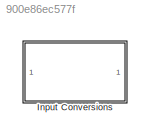
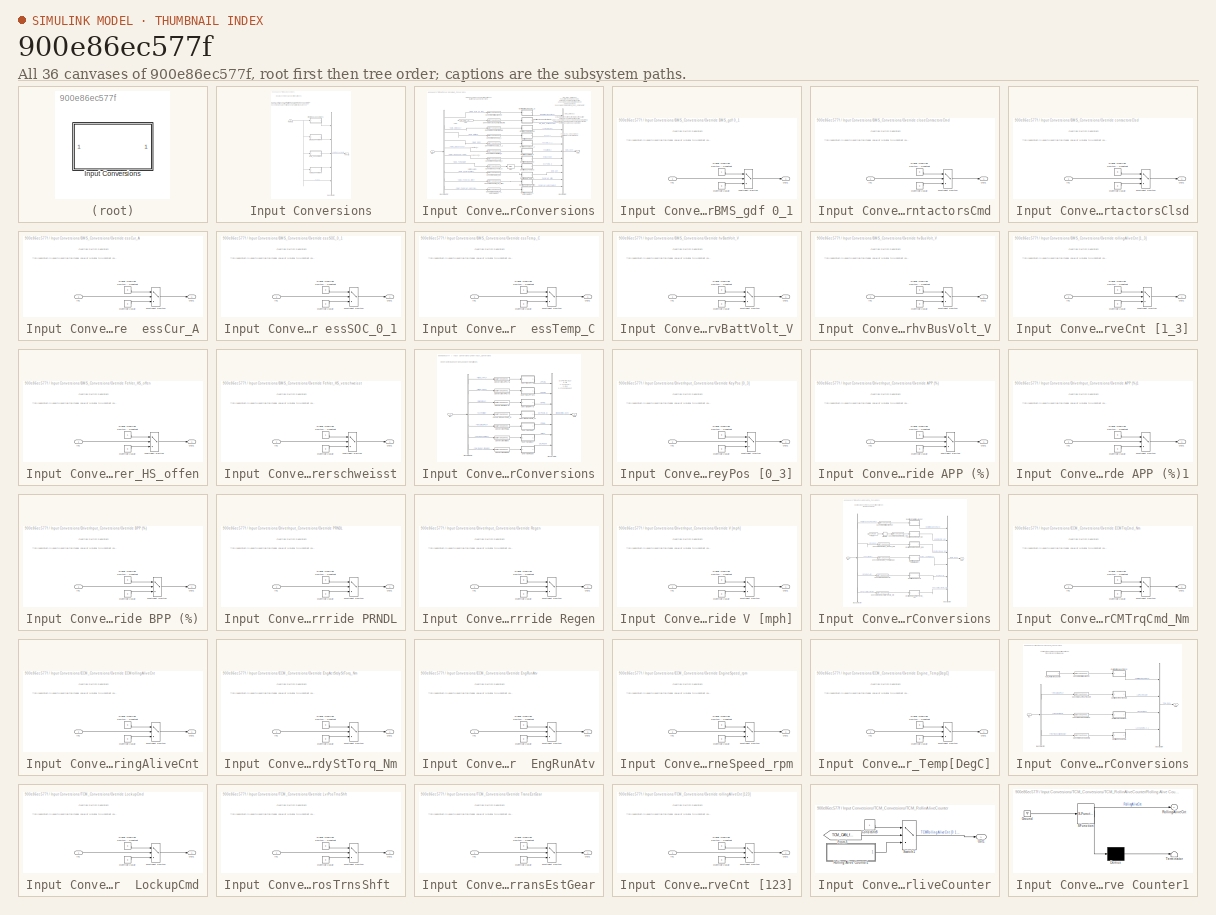
[diagram: thumbnail index - all 36 canvases of the model, root first then tree order]
MODEL slx_900e86ec577f
KIND library
CONFIG AbsTol = auto
CONFIG EnableMultiTasking = off
CONFIG FixedStep = auto
CONFIG MaxStep = auto
CONFIG MinStep = auto
CONFIG RelTol = 1e-3
CONFIG SampleTimeConstraint = Unconstrained
CONFIG Solver = VariableStepAuto
CONFIG SolverName = VariableStepAuto
CONFIG StartTime = 0.0
CONFIG StopTime = 10.0
BLOCK [SubSystem] Input Conversions
  Ports = [1, 1]
  RequestExecContextInheritance = off
  Variant = off
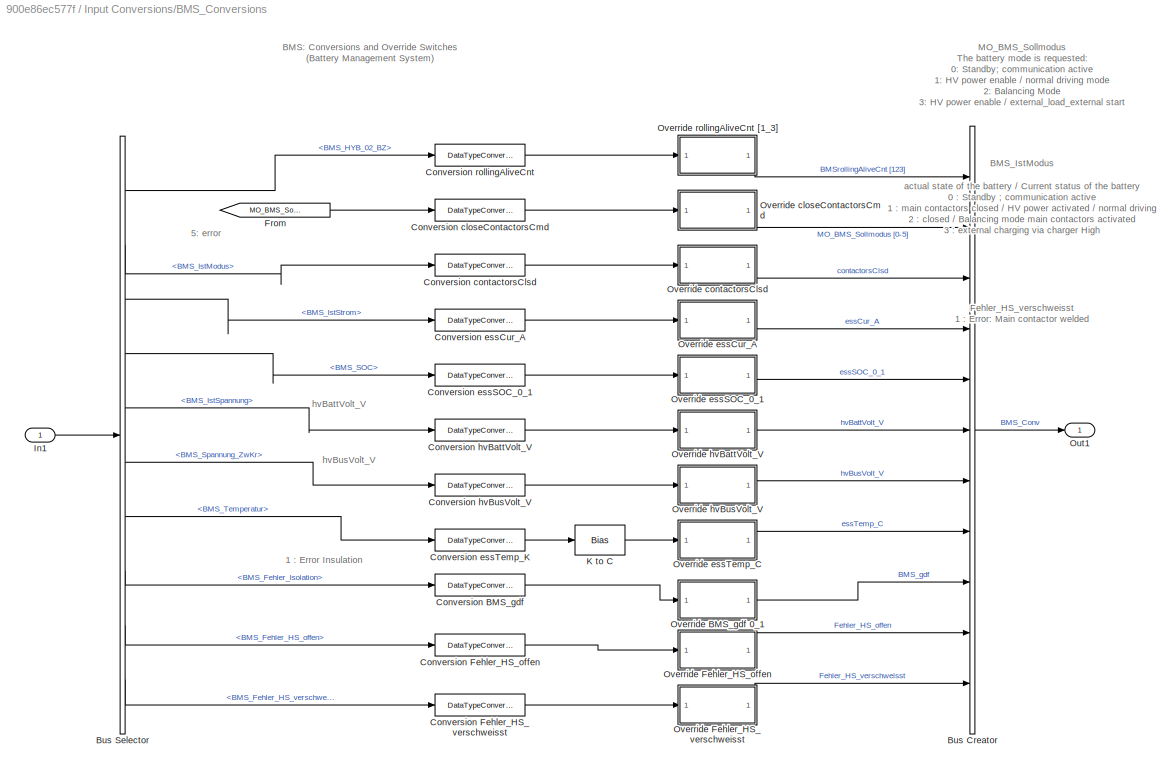
BLOCK [SubSystem] Input Conversions/BMS_Conversions
  Ports = [1, 1]
  RequestExecContextInheritance = off
  Variant = off
BLOCK [BusCreator] Input Conversions/BMS_Conversions/Bus Creator
  DisplayOption = bar
  InheritFromInputs = on
  Inputs = 11
  Ports = [11, 1]
BLOCK [BusSelector] Input Conversions/BMS_Conversions/Bus Selector
  OutputAsBus = off
  OutputSignals = from_CAN.fromHV_CAN.from_BMSHybrid.BMS_HYB_02.BMS_HYB_02_BZ,from_CAN.fromHV_CAN.from_BMSHybrid.BMS_HYB_02.BMS_IstModus,from_CAN.fromHV_CAN.from_BMSHybrid.BMS_HYB_02.BMS_IstStrom,from_CAN.fromHV_CAN.from_BMSHybrid.BMS_SOC,from_CAN.fromHV_CAN.from_BMSHybrid.BMS_HYB_02.BMS_IstSpannung,from_CAN.fromHV_CAN.from_BMSHybrid.BMS_Spannung_ZwKr,from_CAN.fromHV_CAN.from_BMSHybrid.BMS_Temperatur,from_CAN.fromH...<+169ch>
  Ports = [1, 10]
BLOCK [DataTypeConversion] Input Conversions/BMS_Conversions/Conversion  BMS_gdf
  OutDataTypeStr = boolean
  RndMeth = Floor
  SaturateOnIntegerOverflow = off
BLOCK [DataTypeConversion] Input Conversions/BMS_Conversions/Conversion  Fehler_HS_offen
  OutDataTypeStr = boolean
  RndMeth = Floor
  SaturateOnIntegerOverflow = off
BLOCK [DataTypeConversion] Input Conversions/BMS_Conversions/Conversion  Fehler_HS_verschweisst
  OutDataTypeStr = boolean
  RndMeth = Floor
  SaturateOnIntegerOverflow = off
BLOCK [DataTypeConversion] Input Conversions/BMS_Conversions/Conversion  closeContactorsCmd
  OutDataTypeStr = boolean
  RndMeth = Floor
  SaturateOnIntegerOverflow = off
BLOCK [DataTypeConversion] Input Conversions/BMS_Conversions/Conversion  contactorsClsd
  OutDataTypeStr = boolean
  RndMeth = Floor
  SaturateOnIntegerOverflow = off
BLOCK [DataTypeConversion] Input Conversions/BMS_Conversions/Conversion  essTemp_K
  OutDataTypeStr = double
  RndMeth = Floor
  SaturateOnIntegerOverflow = off
BLOCK [DataTypeConversion] Input Conversions/BMS_Conversions/Conversion  hvBattVolt_V
  OutDataTypeStr = double
  RndMeth = Floor
  SaturateOnIntegerOverflow = off
BLOCK [DataTypeConversion] Input Conversions/BMS_Conversions/Conversion  hvBusVolt_V
  OutDataTypeStr = double
  RndMeth = Floor
  SaturateOnIntegerOverflow = off
BLOCK [DataTypeConversion] Input Conversions/BMS_Conversions/Conversion  rollingAliveCnt
  OutDataTypeStr = int8
  RndMeth = Floor
  SaturateOnIntegerOverflow = off
BLOCK [DataTypeConversion] Input Conversions/BMS_Conversions/Conversion essCur_A
  OutDataTypeStr = double
  RndMeth = Floor
  SaturateOnIntegerOverflow = off
BLOCK [DataTypeConversion] Input Conversions/BMS_Conversions/Conversion essSOC_0_1
  OutDataTypeStr = double
  RndMeth = Floor
  SaturateOnIntegerOverflow = off
BLOCK [From] Input Conversions/BMS_Conversions/From
  GotoTag = MO_BMS_Sollmodus
BLOCK [Inport] Input Conversions/BMS_Conversions/In1
  IconDisplay = Port number
BLOCK [Bias] Input Conversions/BMS_Conversions/K to C
  Bias = -273.15
  SaturateOnIntegerOverflow = off
BLOCK [Outport] Input Conversions/BMS_Conversions/Out1
  IconDisplay = Port number
BLOCK [SubSystem] Input Conversions/BMS_Conversions/Override  BMS_gdf 0_1
  Ports = [1, 1]
  RequestExecContextInheritance = off
  Variant = off
BLOCK [Inport] Input Conversions/BMS_Conversions/Override  BMS_gdf 0_1/In1
  IconDisplay = Port number
BLOCK [MultiPortSwitch] Input Conversions/BMS_Conversions/Override  BMS_gdf 0_1/Multiport Switch
  DataPortOrder = Zero-based contiguous
  InputSameDT = off
  Inputs = 2
  Ports = [3, 1]
  SaturateOnIntegerOverflow = off
  zeroidx = on
BLOCK [Outport] Input Conversions/BMS_Conversions/Override  BMS_gdf 0_1/Out1
  IconDisplay = Port number
BLOCK [Constant] Input Conversions/BMS_Conversions/Override  BMS_gdf 0_1/Override Value
  OutDataTypeStr = double
  Value = 0
BLOCK [Constant] Input Conversions/BMS_Conversions/Override  BMS_gdf 0_1/Signal Override Switch 0 = Use Model 1 = Use Constant
BLOCK [SubSystem] Input Conversions/BMS_Conversions/Override  closeContactorsCmd
  Ports = [1, 1]
  RequestExecContextInheritance = off
  Variant = off
BLOCK [Inport] Input Conversions/BMS_Conversions/Override  closeContactorsCmd/In1
  IconDisplay = Port number
BLOCK [MultiPortSwitch] Input Conversions/BMS_Conversions/Override  closeContactorsCmd/Multiport Switch
  DataPortOrder = Zero-based contiguous
  InputSameDT = off
  Inputs = 2
  Ports = [3, 1]
  SaturateOnIntegerOverflow = off
  zeroidx = on
BLOCK [Outport] Input Conversions/BMS_Conversions/Override  closeContactorsCmd/Out1
  IconDisplay = Port number
BLOCK [Constant] Input Conversions/BMS_Conversions/Override  closeContactorsCmd/Override Value
  OutDataTypeStr = double
  Value = 0
BLOCK [Constant] Input Conversions/BMS_Conversions/Override  closeContactorsCmd/Signal Override Switch 0 = Use Model 1 = Use Constant
  Value = 0
BLOCK [SubSystem] Input Conversions/BMS_Conversions/Override  contactorsClsd
  Ports = [1, 1]
  RequestExecContextInheritance = off
  Variant = off
BLOCK [Inport] Input Conversions/BMS_Conversions/Override  contactorsClsd/In1
  IconDisplay = Port number
BLOCK [MultiPortSwitch] Input Conversions/BMS_Conversions/Override  contactorsClsd/Multiport Switch
  DataPortOrder = Zero-based contiguous
  InputSameDT = off
  Inputs = 2
  Ports = [3, 1]
  SaturateOnIntegerOverflow = off
  zeroidx = on
BLOCK [Outport] Input Conversions/BMS_Conversions/Override  contactorsClsd/Out1
  IconDisplay = Port number
BLOCK [Constant] Input Conversions/BMS_Conversions/Override  contactorsClsd/Override Value
  OutDataTypeStr = double
  Value = 0
BLOCK [Constant] Input Conversions/BMS_Conversions/Override  contactorsClsd/Signal Override Switch 0 = Use Model 1 = Use Constant
  Value = 0
BLOCK [SubSystem] Input Conversions/BMS_Conversions/Override  essCur_A
  Ports = [1, 1]
  RequestExecContextInheritance = off
  Variant = off
BLOCK [Inport] Input Conversions/BMS_Conversions/Override  essCur_A/In1
  IconDisplay = Port number
BLOCK [MultiPortSwitch] Input Conversions/BMS_Conversions/Override  essCur_A/Multiport Switch
  DataPortOrder = Zero-based contiguous
  InputSameDT = off
  Inputs = 2
  Ports = [3, 1]
  SaturateOnIntegerOverflow = off
  zeroidx = on
BLOCK [Outport] Input Conversions/BMS_Conversions/Override  essCur_A/Out1
  IconDisplay = Port number
BLOCK [Constant] Input Conversions/BMS_Conversions/Override  essCur_A/Override Value
  OutDataTypeStr = double
  Value = 0
BLOCK [Constant] Input Conversions/BMS_Conversions/Override  essCur_A/Signal Override Switch 0 = Use Model 1 = Use Constant
  Value = 0
BLOCK [SubSystem] Input Conversions/BMS_Conversions/Override  essSOC_0_1
  Ports = [1, 1]
  RequestExecContextInheritance = off
  Variant = off
BLOCK [Inport] Input Conversions/BMS_Conversions/Override  essSOC_0_1/In1
  IconDisplay = Port number
BLOCK [MultiPortSwitch] Input Conversions/BMS_Conversions/Override  essSOC_0_1/Multiport Switch
  DataPortOrder = Zero-based contiguous
  InputSameDT = off
  Inputs = 2
  Ports = [3, 1]
  SaturateOnIntegerOverflow = off
  zeroidx = on
BLOCK [Outport] Input Conversions/BMS_Conversions/Override  essSOC_0_1/Out1
  IconDisplay = Port number
BLOCK [Constant] Input Conversions/BMS_Conversions/Override  essSOC_0_1/Override Value
  OutDataTypeStr = double
  Value = 0
BLOCK [Constant] Input Conversions/BMS_Conversions/Override  essSOC_0_1/Signal Override Switch 0 = Use Model 1 = Use Constant
  Value = 0
BLOCK [SubSystem] Input Conversions/BMS_Conversions/Override  essTemp_C
  Ports = [1, 1]
  RequestExecContextInheritance = off
  Variant = off
BLOCK [Inport] Input Conversions/BMS_Conversions/Override  essTemp_C/In1
  IconDisplay = Port number
BLOCK [MultiPortSwitch] Input Conversions/BMS_Conversions/Override  essTemp_C/Multiport Switch
  DataPortOrder = Zero-based contiguous
  InputSameDT = off
  Inputs = 2
  Ports = [3, 1]
  SaturateOnIntegerOverflow = off
  zeroidx = on
BLOCK [Outport] Input Conversions/BMS_Conversions/Override  essTemp_C/Out1
  IconDisplay = Port number
BLOCK [Constant] Input Conversions/BMS_Conversions/Override  essTemp_C/Override Value
  OutDataTypeStr = double
  Value = 0
BLOCK [Constant] Input Conversions/BMS_Conversions/Override  essTemp_C/Signal Override Switch 0 = Use Model 1 = Use Constant
BLOCK [SubSystem] Input Conversions/BMS_Conversions/Override  hvBattVolt_V
  Ports = [1, 1]
  RequestExecContextInheritance = off
  Variant = off
BLOCK [Inport] Input Conversions/BMS_Conversions/Override  hvBattVolt_V/In1
  IconDisplay = Port number
BLOCK [MultiPortSwitch] Input Conversions/BMS_Conversions/Override  hvBattVolt_V/Multiport Switch
  DataPortOrder = Zero-based contiguous
  InputSameDT = off
  Inputs = 2
  Ports = [3, 1]
  SaturateOnIntegerOverflow = off
  zeroidx = on
BLOCK [Outport] Input Conversions/BMS_Conversions/Override  hvBattVolt_V/Out1
  IconDisplay = Port number
BLOCK [Constant] Input Conversions/BMS_Conversions/Override  hvBattVolt_V/Override Value
  OutDataTypeStr = double
  Value = 0
BLOCK [Constant] Input Conversions/BMS_Conversions/Override  hvBattVolt_V/Signal Override Switch 0 = Use Model 1 = Use Constant
  Value = 0
BLOCK [SubSystem] Input Conversions/BMS_Conversions/Override  hvBusVolt_V
  Ports = [1, 1]
  RequestExecContextInheritance = off
  Variant = off
BLOCK [Inport] Input Conversions/BMS_Conversions/Override  hvBusVolt_V/In1
  IconDisplay = Port number
BLOCK [MultiPortSwitch] Input Conversions/BMS_Conversions/Override  hvBusVolt_V/Multiport Switch
  DataPortOrder = Zero-based contiguous
  InputSameDT = off
  Inputs = 2
  Ports = [3, 1]
  SaturateOnIntegerOverflow = off
  zeroidx = on
BLOCK [Outport] Input Conversions/BMS_Conversions/Override  hvBusVolt_V/Out1
  IconDisplay = Port number
BLOCK [Constant] Input Conversions/BMS_Conversions/Override  hvBusVolt_V/Override Value
  OutDataTypeStr = double
  Value = 0
BLOCK [Constant] Input Conversions/BMS_Conversions/Override  hvBusVolt_V/Signal Override Switch 0 = Use Model 1 = Use Constant
  Value = 0
BLOCK [SubSystem] Input Conversions/BMS_Conversions/Override  rollingAliveCnt [1_3]
  Ports = [1, 1]
  RequestExecContextInheritance = off
  Variant = off
BLOCK [Inport] Input Conversions/BMS_Conversions/Override  rollingAliveCnt [1_3]/In1
  IconDisplay = Port number
BLOCK [MultiPortSwitch] Input Conversions/BMS_Conversions/Override  rollingAliveCnt [1_3]/Multiport Switch
  DataPortOrder = Zero-based contiguous
  InputSameDT = off
  Inputs = 2
  Ports = [3, 1]
  SaturateOnIntegerOverflow = off
  zeroidx = on
BLOCK [Outport] Input Conversions/BMS_Conversions/Override  rollingAliveCnt [1_3]/Out1
  IconDisplay = Port number
BLOCK [Constant] Input Conversions/BMS_Conversions/Override  rollingAliveCnt [1_3]/Override Value
  OutDataTypeStr = double
  Value = 0
BLOCK [Constant] Input Conversions/BMS_Conversions/Override  rollingAliveCnt [1_3]/Signal Override Switch 0 = Use Model 1 = Use Constant
  Value = 0
BLOCK [SubSystem] Input Conversions/BMS_Conversions/Override Fehler_HS_offen
  Ports = [1, 1]
  RequestExecContextInheritance = off
  Variant = off
BLOCK [Inport] Input Conversions/BMS_Conversions/Override Fehler_HS_offen/In1
  IconDisplay = Port number
BLOCK [MultiPortSwitch] Input Conversions/BMS_Conversions/Override Fehler_HS_offen/Multiport Switch
  DataPortOrder = Zero-based contiguous
  InputSameDT = off
  Inputs = 2
  Ports = [3, 1]
  SaturateOnIntegerOverflow = off
  zeroidx = on
BLOCK [Outport] Input Conversions/BMS_Conversions/Override Fehler_HS_offen/Out1
  IconDisplay = Port number
BLOCK [Constant] Input Conversions/BMS_Conversions/Override Fehler_HS_offen/Override Value
  OutDataTypeStr = double
  Value = 0
BLOCK [Constant] Input Conversions/BMS_Conversions/Override Fehler_HS_offen/Signal Override Switch 0 = Use Model 1 = Use Constant
BLOCK [SubSystem] Input Conversions/BMS_Conversions/Override Fehler_HS_verschweisst
  Ports = [1, 1]
  RequestExecContextInheritance = off
  Variant = off
BLOCK [Inport] Input Conversions/BMS_Conversions/Override Fehler_HS_verschweisst/In1
  IconDisplay = Port number
BLOCK [MultiPortSwitch] Input Conversions/BMS_Conversions/Override Fehler_HS_verschweisst/Multiport Switch
  DataPortOrder = Zero-based contiguous
  InputSameDT = off
  Inputs = 2
  Ports = [3, 1]
  SaturateOnIntegerOverflow = off
  zeroidx = on
BLOCK [Outport] Input Conversions/BMS_Conversions/Override Fehler_HS_verschweisst/Out1
  IconDisplay = Port number
BLOCK [Constant] Input Conversions/BMS_Conversions/Override Fehler_HS_verschweisst/Override Value
  OutDataTypeStr = double
  Value = 0
BLOCK [Constant] Input Conversions/BMS_Conversions/Override Fehler_HS_verschweisst/Signal Override Switch 0 = Use Model 1 = Use Constant
BLOCK [BusCreator] Input Conversions/Bus Creator
  DisplayOption = bar
  InheritFromInputs = on
  Inputs = 5
  Ports = [5, 1]
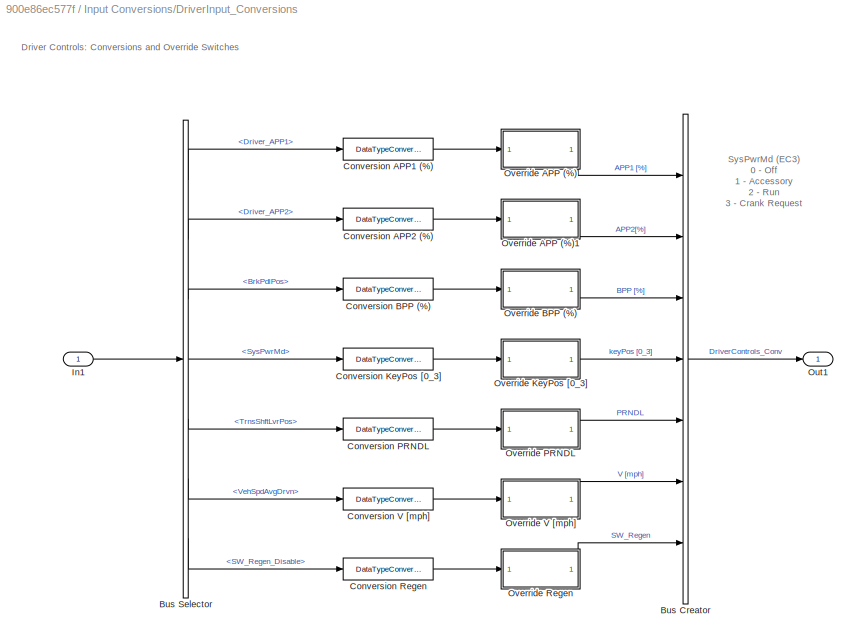
BLOCK [SubSystem] Input Conversions/DriverInput_Conversions
  Ports = [1, 1]
  RequestExecContextInheritance = off
  Variant = off
BLOCK [BusCreator] Input Conversions/DriverInput_Conversions/Bus Creator
  DisplayOption = bar
  InheritFromInputs = on
  Inputs = 7
  Ports = [7, 1]
BLOCK [BusSelector] Input Conversions/DriverInput_Conversions/Bus Selector
  OutputAsBus = off
  OutputSignals = from_Analog.Driver_APP1,from_Analog.Driver_APP2,from_CAN.fromVEH_CAN.from_BCM.BrkPdlPos,from_CAN.fromVEH_CAN.from_BCM.SysPwrMd,from_CAN.fromVEH_CAN.from_TCM.TrnsShftLvrPos,from_CAN.fromEBCAN.from_ECM.VehSpdAvgDrvn,from_Digital.SW_Regen_Disable
  Ports = [1, 7]
BLOCK [DataTypeConversion] Input Conversions/DriverInput_Conversions/Conversion  APP1 (%)
  OutDataTypeStr = double
  RndMeth = Floor
  SaturateOnIntegerOverflow = off
BLOCK [DataTypeConversion] Input Conversions/DriverInput_Conversions/Conversion  APP2 (%)
  OutDataTypeStr = double
  RndMeth = Floor
  SaturateOnIntegerOverflow = off
BLOCK [DataTypeConversion] Input Conversions/DriverInput_Conversions/Conversion  BPP (%)
  OutDataTypeStr = double
  RndMeth = Floor
  SaturateOnIntegerOverflow = off
BLOCK [DataTypeConversion] Input Conversions/DriverInput_Conversions/Conversion  KeyPos [0_3]
  OutDataTypeStr = int8
  RndMeth = Floor
  SaturateOnIntegerOverflow = off
BLOCK [DataTypeConversion] Input Conversions/DriverInput_Conversions/Conversion  V [mph]
  OutDataTypeStr = double
  RndMeth = Floor
  SaturateOnIntegerOverflow = off
BLOCK [DataTypeConversion] Input Conversions/DriverInput_Conversions/Conversion PRNDL
  OutDataTypeStr = uint8
  RndMeth = Floor
  SaturateOnIntegerOverflow = off
BLOCK [DataTypeConversion] Input Conversions/DriverInput_Conversions/Conversion Regen
  OutDataTypeStr = uint8
  RndMeth = Floor
  SaturateOnIntegerOverflow = off
BLOCK [Inport] Input Conversions/DriverInput_Conversions/In1
  IconDisplay = Port number
BLOCK [Outport] Input Conversions/DriverInput_Conversions/Out1
  IconDisplay = Port number
BLOCK [SubSystem] Input Conversions/DriverInput_Conversions/Override  KeyPos [0_3]
  Ports = [1, 1]
  RequestExecContextInheritance = off
  Variant = off
BLOCK [Inport] Input Conversions/DriverInput_Conversions/Override  KeyPos [0_3]/In1
  IconDisplay = Port number
BLOCK [MultiPortSwitch] Input Conversions/DriverInput_Conversions/Override  KeyPos [0_3]/Multiport Switch
  DataPortOrder = Zero-based contiguous
  InputSameDT = off
  Inputs = 2
  Ports = [3, 1]
  SaturateOnIntegerOverflow = off
  zeroidx = on
BLOCK [Outport] Input Conversions/DriverInput_Conversions/Override  KeyPos [0_3]/Out1
  IconDisplay = Port number
BLOCK [Constant] Input Conversions/DriverInput_Conversions/Override  KeyPos [0_3]/Override Value
  OutDataTypeStr = double
  Value = 0
BLOCK [Constant] Input Conversions/DriverInput_Conversions/Override  KeyPos [0_3]/Signal Override Switch 0 = Use Model 1 = Use Constant
  Value = 0
BLOCK [SubSystem] Input Conversions/DriverInput_Conversions/Override APP (%)
  Ports = [1, 1]
  RequestExecContextInheritance = off
  Variant = off
BLOCK [Inport] Input Conversions/DriverInput_Conversions/Override APP (%)/In1
  IconDisplay = Port number
BLOCK [MultiPortSwitch] Input Conversions/DriverInput_Conversions/Override APP (%)/Multiport Switch
  DataPortOrder = Zero-based contiguous
  InputSameDT = off
  Inputs = 2
  Ports = [3, 1]
  SaturateOnIntegerOverflow = off
  zeroidx = on
BLOCK [Outport] Input Conversions/DriverInput_Conversions/Override APP (%)/Out1
  IconDisplay = Port number
BLOCK [Constant] Input Conversions/DriverInput_Conversions/Override APP (%)/Override Value
  OutDataTypeStr = double
  Value = 0
BLOCK [Constant] Input Conversions/DriverInput_Conversions/Override APP (%)/Signal Override Switch 0 = Use Model 1 = Use Constant
  Value = 0
BLOCK [SubSystem] Input Conversions/DriverInput_Conversions/Override APP (%)1
  Ports = [1, 1]
  RequestExecContextInheritance = off
  Variant = off
BLOCK [Inport] Input Conversions/DriverInput_Conversions/Override APP (%)1/In1
  IconDisplay = Port number
BLOCK [MultiPortSwitch] Input Conversions/DriverInput_Conversions/Override APP (%)1/Multiport Switch
  DataPortOrder = Zero-based contiguous
  InputSameDT = off
  Inputs = 2
  Ports = [3, 1]
  SaturateOnIntegerOverflow = off
  zeroidx = on
BLOCK [Outport] Input Conversions/DriverInput_Conversions/Override APP (%)1/Out1
  IconDisplay = Port number
BLOCK [Constant] Input Conversions/DriverInput_Conversions/Override APP (%)1/Override Value
  OutDataTypeStr = double
  Value = 0
BLOCK [Constant] Input Conversions/DriverInput_Conversions/Override APP (%)1/Signal Override Switch 0 = Use Model 1 = Use Constant
  Value = 0
BLOCK [SubSystem] Input Conversions/DriverInput_Conversions/Override BPP (%)
  Ports = [1, 1]
  RequestExecContextInheritance = off
  Variant = off
BLOCK [Inport] Input Conversions/DriverInput_Conversions/Override BPP (%)/In1
  IconDisplay = Port number
BLOCK [MultiPortSwitch] Input Conversions/DriverInput_Conversions/Override BPP (%)/Multiport Switch
  DataPortOrder = Zero-based contiguous
  InputSameDT = off
  Inputs = 2
  Ports = [3, 1]
  SaturateOnIntegerOverflow = off
  zeroidx = on
BLOCK [Outport] Input Conversions/DriverInput_Conversions/Override BPP (%)/Out1
  IconDisplay = Port number
BLOCK [Constant] Input Conversions/DriverInput_Conversions/Override BPP (%)/Override Value
  OutDataTypeStr = double
  Value = 0
BLOCK [Constant] Input Conversions/DriverInput_Conversions/Override BPP (%)/Signal Override Switch 0 = Use Model 1 = Use Constant
  Value = 0
BLOCK [SubSystem] Input Conversions/DriverInput_Conversions/Override PRNDL
  Ports = [1, 1]
  RequestExecContextInheritance = off
  Variant = off
BLOCK [Inport] Input Conversions/DriverInput_Conversions/Override PRNDL/In1
  IconDisplay = Port number
BLOCK [MultiPortSwitch] Input Conversions/DriverInput_Conversions/Override PRNDL/Multiport Switch
  DataPortOrder = Zero-based contiguous
  InputSameDT = off
  Inputs = 2
  Ports = [3, 1]
  SaturateOnIntegerOverflow = off
  zeroidx = on
BLOCK [Outport] Input Conversions/DriverInput_Conversions/Override PRNDL/Out1
  IconDisplay = Port number
BLOCK [Constant] Input Conversions/DriverInput_Conversions/Override PRNDL/Override Value
  OutDataTypeStr = double
  Value = 0
BLOCK [Constant] Input Conversions/DriverInput_Conversions/Override PRNDL/Signal Override Switch 0 = Use Model 1 = Use Constant
  Value = 0
BLOCK [SubSystem] Input Conversions/DriverInput_Conversions/Override Regen
  Ports = [1, 1]
  RequestExecContextInheritance = off
  Variant = off
BLOCK [Inport] Input Conversions/DriverInput_Conversions/Override Regen/In1
  IconDisplay = Port number
BLOCK [MultiPortSwitch] Input Conversions/DriverInput_Conversions/Override Regen/Multiport Switch
  DataPortOrder = Zero-based contiguous
  InputSameDT = off
  Inputs = 2
  Ports = [3, 1]
  SaturateOnIntegerOverflow = off
  zeroidx = on
BLOCK [Outport] Input Conversions/DriverInput_Conversions/Override Regen/Out1
  IconDisplay = Port number
BLOCK [Constant] Input Conversions/DriverInput_Conversions/Override Regen/Override Value
  OutDataTypeStr = double
  Value = 0
BLOCK [Constant] Input Conversions/DriverInput_Conversions/Override Regen/Signal Override Switch 0 = Use Model 1 = Use Constant
  Value = 0
BLOCK [SubSystem] Input Conversions/DriverInput_Conversions/Override V [mph]
  Ports = [1, 1]
  RequestExecContextInheritance = off
  Variant = off
BLOCK [Inport] Input Conversions/DriverInput_Conversions/Override V [mph]/In1
  IconDisplay = Port number
BLOCK [MultiPortSwitch] Input Conversions/DriverInput_Conversions/Override V [mph]/Multiport Switch
  DataPortOrder = Zero-based contiguous
  InputSameDT = off
  Inputs = 2
  Ports = [3, 1]
  SaturateOnIntegerOverflow = off
  zeroidx = on
BLOCK [Outport] Input Conversions/DriverInput_Conversions/Override V [mph]/Out1
  IconDisplay = Port number
BLOCK [Constant] Input Conversions/DriverInput_Conversions/Override V [mph]/Override Value
  OutDataTypeStr = double
  Value = 0
BLOCK [Constant] Input Conversions/DriverInput_Conversions/Override V [mph]/Signal Override Switch 0 = Use Model 1 = Use Constant
  Value = 0
BLOCK [SubSystem] Input Conversions/ECM_Conversions
  Ports = [1, 1]
  RequestExecContextInheritance = off
  Variant = off
BLOCK [BusCreator] Input Conversions/ECM_Conversions/Bus Creator
  DisplayOption = bar
  InheritFromInputs = on
  Inputs = 6
  Ports = [6, 1]
BLOCK [BusSelector] Input Conversions/ECM_Conversions/Bus Selector
  OutputAsBus = off
  OutputSignals = from_CAN.fromEBCAN.from_ECM.PlatEngSpdCmdStARC,from_CAN.fromEBCAN.from_ECM.EngSpd,from_CAN.fromEBCAN.from_ECM.EngCltTmp,from_CAN.fromEBCAN.from_ECM.EngRunAtv,from_CAN.fromEBCAN.from_ECM.EngActStdyStTorq
  Ports = [1, 5]
BLOCK [DataTypeConversion] Input Conversions/ECM_Conversions/Conversion  ECMTrqCmd_Nm
  OutDataTypeStr = double
  RndMeth = Floor
  SaturateOnIntegerOverflow = off
BLOCK [DataTypeConversion] Input Conversions/ECM_Conversions/Conversion  EngActStdyStTorq_Nm
  OutDataTypeStr = double
  RndMeth = Floor
  SaturateOnIntegerOverflow = off
BLOCK [DataTypeConversion] Input Conversions/ECM_Conversions/Conversion  EngRunAtv
  OutDataTypeStr = boolean
  RndMeth = Floor
  SaturateOnIntegerOverflow = off
BLOCK [DataTypeConversion] Input Conversions/ECM_Conversions/Conversion  Engine_Speed_rpm
  OutDataTypeStr = double
  RndMeth = Floor
  SaturateOnIntegerOverflow = off
BLOCK [DataTypeConversion] Input Conversions/ECM_Conversions/Conversion  Engine_Temp[DegC]
  OutDataTypeStr = double
  RndMeth = Floor
  SaturateOnIntegerOverflow = off
BLOCK [DataTypeConversion] Input Conversions/ECM_Conversions/Conversion  rollingAliveCnt
  OutDataTypeStr = int8
  RndMeth = Floor
  SaturateOnIntegerOverflow = off
BLOCK [From] Input Conversions/ECM_Conversions/From7
  GotoTag = EngTrqCmd
BLOCK [Inport] Input Conversions/ECM_Conversions/In1
  IconDisplay = Port number
BLOCK [Memory] Input Conversions/ECM_Conversions/Memory
BLOCK [Outport] Input Conversions/ECM_Conversions/Out1
  IconDisplay = Port number
BLOCK [SubSystem] Input Conversions/ECM_Conversions/Override  ECMTrqCmd_Nm
  Ports = [1, 1]
  RequestExecContextInheritance = off
  Variant = off
BLOCK [Inport] Input Conversions/ECM_Conversions/Override  ECMTrqCmd_Nm/In1
  IconDisplay = Port number
BLOCK [MultiPortSwitch] Input Conversions/ECM_Conversions/Override  ECMTrqCmd_Nm/Multiport Switch
  DataPortOrder = Zero-based contiguous
  InputSameDT = off
  Inputs = 2
  Ports = [3, 1]
  SaturateOnIntegerOverflow = off
  zeroidx = on
BLOCK [Outport] Input Conversions/ECM_Conversions/Override  ECMTrqCmd_Nm/Out1
  IconDisplay = Port number
BLOCK [Constant] Input Conversions/ECM_Conversions/Override  ECMTrqCmd_Nm/Override Value
  OutDataTypeStr = double
  Value = 0
BLOCK [Constant] Input Conversions/ECM_Conversions/Override  ECMTrqCmd_Nm/Signal Override Switch 0 = Use Model 1 = Use Constant
  Value = 0
BLOCK [SubSystem] Input Conversions/ECM_Conversions/Override  ECMrollingAliveCnt
  Ports = [1, 1]
  RequestExecContextInheritance = off
  Variant = off
BLOCK [Inport] Input Conversions/ECM_Conversions/Override  ECMrollingAliveCnt/In1
  IconDisplay = Port number
BLOCK [MultiPortSwitch] Input Conversions/ECM_Conversions/Override  ECMrollingAliveCnt/Multiport Switch
  DataPortOrder = Zero-based contiguous
  InputSameDT = off
  Inputs = 2
  Ports = [3, 1]
  SaturateOnIntegerOverflow = off
  zeroidx = on
BLOCK [Outport] Input Conversions/ECM_Conversions/Override  ECMrollingAliveCnt/Out1
  IconDisplay = Port number
BLOCK [Constant] Input Conversions/ECM_Conversions/Override  ECMrollingAliveCnt/Override Value
  OutDataTypeStr = double
  Value = 0
BLOCK [Constant] Input Conversions/ECM_Conversions/Override  ECMrollingAliveCnt/Signal Override Switch 0 = Use Model 1 = Use Constant
  Value = 0
BLOCK [SubSystem] Input Conversions/ECM_Conversions/Override  EngActStdyStTorq_Nm
  Ports = [1, 1]
  RequestExecContextInheritance = off
  Variant = off
BLOCK [Inport] Input Conversions/ECM_Conversions/Override  EngActStdyStTorq_Nm/In1
  IconDisplay = Port number
BLOCK [MultiPortSwitch] Input Conversions/ECM_Conversions/Override  EngActStdyStTorq_Nm/Multiport Switch
  DataPortOrder = Zero-based contiguous
  InputSameDT = off
  Inputs = 2
  Ports = [3, 1]
  SaturateOnIntegerOverflow = off
  zeroidx = on
BLOCK [Outport] Input Conversions/ECM_Conversions/Override  EngActStdyStTorq_Nm/Out1
  IconDisplay = Port number
BLOCK [Constant] Input Conversions/ECM_Conversions/Override  EngActStdyStTorq_Nm/Override Value
  OutDataTypeStr = double
  Value = 0
BLOCK [Constant] Input Conversions/ECM_Conversions/Override  EngActStdyStTorq_Nm/Signal Override Switch 0 = Use Model 1 = Use Constant
  Value = 0
BLOCK [SubSystem] Input Conversions/ECM_Conversions/Override  EngRunAtv
  Ports = [1, 1]
  RequestExecContextInheritance = off
  Variant = off
BLOCK [Inport] Input Conversions/ECM_Conversions/Override  EngRunAtv/In1
  IconDisplay = Port number
BLOCK [MultiPortSwitch] Input Conversions/ECM_Conversions/Override  EngRunAtv/Multiport Switch
  DataPortOrder = Zero-based contiguous
  InputSameDT = off
  Inputs = 2
  Ports = [3, 1]
  SaturateOnIntegerOverflow = off
  zeroidx = on
BLOCK [Outport] Input Conversions/ECM_Conversions/Override  EngRunAtv/Out1
  IconDisplay = Port number
BLOCK [Constant] Input Conversions/ECM_Conversions/Override  EngRunAtv/Override Value
  OutDataTypeStr = double
  Value = 0
BLOCK [Constant] Input Conversions/ECM_Conversions/Override  EngRunAtv/Signal Override Switch 0 = Use Model 1 = Use Constant
  Value = 0
BLOCK [SubSystem] Input Conversions/ECM_Conversions/Override  EngineSpeed_rpm
  Ports = [1, 1]
  RequestExecContextInheritance = off
  Variant = off
BLOCK [Inport] Input Conversions/ECM_Conversions/Override  EngineSpeed_rpm/In1
  IconDisplay = Port number
BLOCK [MultiPortSwitch] Input Conversions/ECM_Conversions/Override  EngineSpeed_rpm/Multiport Switch
  DataPortOrder = Zero-based contiguous
  InputSameDT = off
  Inputs = 2
  Ports = [3, 1]
  SaturateOnIntegerOverflow = off
  zeroidx = on
BLOCK [Outport] Input Conversions/ECM_Conversions/Override  EngineSpeed_rpm/Out1
  IconDisplay = Port number
BLOCK [Constant] Input Conversions/ECM_Conversions/Override  EngineSpeed_rpm/Override Value
  OutDataTypeStr = double
  Value = 0
BLOCK [Constant] Input Conversions/ECM_Conversions/Override  EngineSpeed_rpm/Signal Override Switch 0 = Use Model 1 = Use Constant
  Value = 0
BLOCK [SubSystem] Input Conversions/ECM_Conversions/Override  Engine_Temp[DegC]
  Ports = [1, 1]
  RequestExecContextInheritance = off
  Variant = off
BLOCK [Inport] Input Conversions/ECM_Conversions/Override  Engine_Temp[DegC]/In1
  IconDisplay = Port number
BLOCK [MultiPortSwitch] Input Conversions/ECM_Conversions/Override  Engine_Temp[DegC]/Multiport Switch
  DataPortOrder = Zero-based contiguous
  InputSameDT = off
  Inputs = 2
  Ports = [3, 1]
  SaturateOnIntegerOverflow = off
  zeroidx = on
BLOCK [Outport] Input Conversions/ECM_Conversions/Override  Engine_Temp[DegC]/Out1
  IconDisplay = Port number
BLOCK [Constant] Input Conversions/ECM_Conversions/Override  Engine_Temp[DegC]/Override Value
  OutDataTypeStr = double
  Value = 0
BLOCK [Constant] Input Conversions/ECM_Conversions/Override  Engine_Temp[DegC]/Signal Override Switch 0 = Use Model 1 = Use Constant
  Value = 0
BLOCK [Inport] Input Conversions/RawSig
  IconDisplay = Port number
BLOCK [SubSystem] Input Conversions/TCM_Conversions
  Ports = [1, 1]
  RequestExecContextInheritance = off
  Variant = off
BLOCK [BusCreator] Input Conversions/TCM_Conversions/Bus Creator
  DisplayOption = bar
  InheritFromInputs = on
  Inputs = 4
  Ports = [4, 1]
BLOCK [BusSelector] Input Conversions/TCM_Conversions/Bus Selector
  OutputAsBus = off
  OutputSignals = from_CAN.fromVEH_CAN.from_TCM.TrnsShftLvrPos,from_CAN.fromVEH_CAN.from_TCM.TransEstGear,from_CAN.fromVEH_CAN.from_TCM.TrnsTrqCnvCltCmndMd
  Ports = [1, 3]
BLOCK [DataTypeConversion] Input Conversions/TCM_Conversions/Conversion  LockupCmd
  OutDataTypeStr = boolean
  RndMeth = Floor
  SaturateOnIntegerOverflow = off
BLOCK [DataTypeConversion] Input Conversions/TCM_Conversions/Conversion  LvrPosTrnsShft
  OutDataTypeStr = int8
  RndMeth = Floor
  SaturateOnIntegerOverflow = off
BLOCK [DataTypeConversion] Input Conversions/TCM_Conversions/Conversion  TransEstGear
  OutDataTypeStr = int8
  RndMeth = Floor
  SaturateOnIntegerOverflow = off
BLOCK [DataTypeConversion] Input Conversions/TCM_Conversions/Conversion  rollingAliveCnt
  OutDataTypeStr = int8
  RndMeth = Floor
  SaturateOnIntegerOverflow = off
BLOCK [Inport] Input Conversions/TCM_Conversions/In1
  IconDisplay = Port number
BLOCK [Outport] Input Conversions/TCM_Conversions/Out1
  IconDisplay = Port number
BLOCK [SubSystem] Input Conversions/TCM_Conversions/Override  LockupCmd
  Ports = [1, 1]
  RequestExecContextInheritance = off
  Variant = off
BLOCK [Inport] Input Conversions/TCM_Conversions/Override  LockupCmd/In1
  IconDisplay = Port number
BLOCK [MultiPortSwitch] Input Conversions/TCM_Conversions/Override  LockupCmd/Multiport Switch
  DataPortOrder = Zero-based contiguous
  InputSameDT = off
  Inputs = 2
  Ports = [3, 1]
  SaturateOnIntegerOverflow = off
  zeroidx = on
BLOCK [Outport] Input Conversions/TCM_Conversions/Override  LockupCmd/Out1
  IconDisplay = Port number
BLOCK [Constant] Input Conversions/TCM_Conversions/Override  LockupCmd/Override Value
  OutDataTypeStr = double
  Value = 0
BLOCK [Constant] Input Conversions/TCM_Conversions/Override  LockupCmd/Signal Override Switch 0 = Use Model 1 = Use Constant
  Value = 0
BLOCK [SubSystem] Input Conversions/TCM_Conversions/Override  LvrPosTrnsShft 
  Ports = [1, 1]
  RequestExecContextInheritance = off
  Variant = off
BLOCK [Inport] Input Conversions/TCM_Conversions/Override  LvrPosTrnsShft /In1
  IconDisplay = Port number
BLOCK [MultiPortSwitch] Input Conversions/TCM_Conversions/Override  LvrPosTrnsShft /Multiport Switch
  DataPortOrder = Zero-based contiguous
  InputSameDT = off
  Inputs = 2
  Ports = [3, 1]
  SaturateOnIntegerOverflow = off
  zeroidx = on
BLOCK [Outport] Input Conversions/TCM_Conversions/Override  LvrPosTrnsShft /Out1
  IconDisplay = Port number
BLOCK [Constant] Input Conversions/TCM_Conversions/Override  LvrPosTrnsShft /Override Value
  OutDataTypeStr = double
  Value = 0
BLOCK [Constant] Input Conversions/TCM_Conversions/Override  LvrPosTrnsShft /Signal Override Switch 0 = Use Model 1 = Use Constant
  Value = 0
BLOCK [SubSystem] Input Conversions/TCM_Conversions/Override  TransEstGear
  Ports = [1, 1]
  RequestExecContextInheritance = off
  Variant = off
BLOCK [Inport] Input Conversions/TCM_Conversions/Override  TransEstGear/In1
  IconDisplay = Port number
BLOCK [MultiPortSwitch] Input Conversions/TCM_Conversions/Override  TransEstGear/Multiport Switch
  DataPortOrder = Zero-based contiguous
  InputSameDT = off
  Inputs = 2
  Ports = [3, 1]
  SaturateOnIntegerOverflow = off
  zeroidx = on
BLOCK [Outport] Input Conversions/TCM_Conversions/Override  TransEstGear/Out1
  IconDisplay = Port number
BLOCK [Constant] Input Conversions/TCM_Conversions/Override  TransEstGear/Override Value
  OutDataTypeStr = double
  Value = 0
BLOCK [Constant] Input Conversions/TCM_Conversions/Override  TransEstGear/Signal Override Switch 0 = Use Model 1 = Use Constant
  Value = 0
BLOCK [SubSystem] Input Conversions/TCM_Conversions/Override  rollingAliveCnt [123]
  Ports = [1, 1]
  RequestExecContextInheritance = off
  Variant = off
BLOCK [Inport] Input Conversions/TCM_Conversions/Override  rollingAliveCnt [123]/In1
  IconDisplay = Port number
BLOCK [MultiPortSwitch] Input Conversions/TCM_Conversions/Override  rollingAliveCnt [123]/Multiport Switch
  DataPortOrder = Zero-based contiguous
  InputSameDT = off
  Inputs = 2
  Ports = [3, 1]
  SaturateOnIntegerOverflow = off
  zeroidx = on
BLOCK [Outport] Input Conversions/TCM_Conversions/Override  rollingAliveCnt [123]/Out1
  IconDisplay = Port number
BLOCK [Constant] Input Conversions/TCM_Conversions/Override  rollingAliveCnt [123]/Override Value
  OutDataTypeStr = double
  Value = 0
BLOCK [Constant] Input Conversions/TCM_Conversions/Override  rollingAliveCnt [123]/Signal Override Switch 0 = Use Model 1 = Use Constant
  Value = 0
BLOCK [SubSystem] Input Conversions/TCM_Conversions/TCM_RollinAliveCounter
  Ports = [0, 1]
  RequestExecContextInheritance = off
  Variant = off
BLOCK [Constant] Input Conversions/TCM_Conversions/TCM_RollinAliveCounter/Constant8
BLOCK [From] Input Conversions/TCM_Conversions/TCM_RollinAliveCounter/From3
  GotoTag = TCM_CAN_fault
BLOCK [Outport] Input Conversions/TCM_Conversions/TCM_RollinAliveCounter/Out1
  IconDisplay = Port number
BLOCK [SubSystem] Input Conversions/TCM_Conversions/TCM_RollinAliveCounter/Rolling Alive Counter1
  ErrorFcn = Stateflow.Translate.translate
  PermitHierarchicalResolution = ExplicitOnly
  Ports = [0, 1]
  RequestExecContextInheritance = off
  SFBlockType = Chart
  TreatAsAtomicUnit = on
  Variant = off
BLOCK [Demux] Input Conversions/TCM_Conversions/TCM_RollinAliveCounter/Rolling Alive Counter1/ Demux 
  Outputs = 1
  Ports = [1, 1]
BLOCK [Ground] Input Conversions/TCM_Conversions/TCM_RollinAliveCounter/Rolling Alive Counter1/ Ground 
BLOCK [S-Function] Input Conversions/TCM_Conversions/TCM_RollinAliveCounter/Rolling Alive Counter1/ SFunction 
  EnableBusSupport = on
  FunctionName = sf_sfun
  PortCounts = [1 2]
  Ports = [1, 2]
  SFcnIsStateOwnerBlock = off
  SFunctionDeploymentMode = off
  Tag = Stateflow S-Function lib_InputConversions 70
BLOCK [Terminator] Input Conversions/TCM_Conversions/TCM_RollinAliveCounter/Rolling Alive Counter1/ Terminator 
BLOCK [Outport] Input Conversions/TCM_Conversions/TCM_RollinAliveCounter/Rolling Alive Counter1/RollingAliveCnt
  IconDisplay = Port number
BLOCK [Switch] Input Conversions/TCM_Conversions/TCM_RollinAliveCounter/Switch1
  Criteria = u2 > Threshold
  InputSameDT = off
  SaturateOnIntegerOverflow = off
BLOCK [Outport] Input Conversions/VehSig
  IconDisplay = Port number
ANNOTATION Input Conversions: Input Conversions and Override Switches
ANNOTATION Input Conversions: These subsystems convert variable types to match those used in the supervisor. In addition, override switches installed on each signal can be used to manually override and signal for testing purposes
ANNOTATION Input Conversions/BMS_Conversions: 1 : Error Insulation
ANNOTATION Input Conversions/BMS_Conversions: 5: error
ANNOTATION Input Conversions/BMS_Conversions: MO_BMS_Sollmodus The battery mode is requested: 0: Standby; communication active 1: HV power enable / normal driving mode 2: Balancing Mode 3: HV power enable / external_load_external start 4: HV power enable / external load_EV_PlugIn 5: None
ANNOTATION Input Conversions/BMS_Conversions: Fehler_HS_verschweisst 1 : Error: Main contactor welded
ANNOTATION Input Conversions/BMS_Conversions: BMS_IstModus actual state of the battery / Current status of the battery 0 : Standby ; communication active 1 : main contactors closed / HV power activated / normal driving 2 : closed / Balancing mode main contactors activated 3 : external charging via charger High 4 : external charging HV 5 : Error Battery 6 : External DC Charging HV 7 : Init
ANNOTATION Input Conversions/BMS_Conversions: BMS: Conversions and Override Switches (Battery Management System)
ANNOTATION Input Conversions/BMS_Conversions: hvBattVolt_V
ANNOTATION Input Conversions/BMS_Conversions: hvBusVolt_V
ANNOTATION Input Conversions/BMS_Conversions/Override  BMS_gdf 0_1: Override Switch Subsystem
ANNOTATION Input Conversions/BMS_Conversions/Override  BMS_gdf 0_1: This subsystem is used to override the model value of a signal to a constant value
ANNOTATION Input Conversions/BMS_Conversions/Override  closeContactorsCmd: Override Switch Subsystem
ANNOTATION Input Conversions/BMS_Conversions/Override  closeContactorsCmd: This subsystem is used to override the model value of a signal to a constant value
ANNOTATION Input Conversions/BMS_Conversions/Override  contactorsClsd: Override Switch Subsystem
ANNOTATION Input Conversions/BMS_Conversions/Override  contactorsClsd: This subsystem is used to override the model value of a signal to a constant value
ANNOTATION Input Conversions/BMS_Conversions/Override  essCur_A: Override Switch Subsystem
ANNOTATION Input Conversions/BMS_Conversions/Override  essCur_A: This subsystem is used to override the model value of a signal to a constant value
ANNOTATION Input Conversions/BMS_Conversions/Override  essSOC_0_1: Override Switch Subsystem
ANNOTATION Input Conversions/BMS_Conversions/Override  essSOC_0_1: This subsystem is used to override the model value of a signal to a constant value
ANNOTATION Input Conversions/BMS_Conversions/Override  essTemp_C: Override Switch Subsystem
ANNOTATION Input Conversions/BMS_Conversions/Override  essTemp_C: This subsystem is used to override the model value of a signal to a constant value
ANNOTATION Input Conversions/BMS_Conversions/Override  hvBattVolt_V: Override Switch Subsystem
ANNOTATION Input Conversions/BMS_Conversions/Override  hvBattVolt_V: This subsystem is used to override the model value of a signal to a constant value
ANNOTATION Input Conversions/BMS_Conversions/Override  hvBusVolt_V: Override Switch Subsystem
ANNOTATION Input Conversions/BMS_Conversions/Override  hvBusVolt_V: This subsystem is used to override the model value of a signal to a constant value
ANNOTATION Input Conversions/BMS_Conversions/Override  rollingAliveCnt [1_3]: Override Switch Subsystem
ANNOTATION Input Conversions/BMS_Conversions/Override  rollingAliveCnt [1_3]: This subsystem is used to override the model value of a signal to a constant value
ANNOTATION Input Conversions/BMS_Conversions/Override Fehler_HS_offen: Override Switch Subsystem
ANNOTATION Input Conversions/BMS_Conversions/Override Fehler_HS_offen: This subsystem is used to override the model value of a signal to a constant value
ANNOTATION Input Conversions/BMS_Conversions/Override Fehler_HS_verschweisst: Override Switch Subsystem
ANNOTATION Input Conversions/BMS_Conversions/Override Fehler_HS_verschweisst: This subsystem is used to override the model value of a signal to a constant value
ANNOTATION Input Conversions/DriverInput_Conversions: Driver Controls: Conversions and Override Switches
ANNOTATION Input Conversions/DriverInput_Conversions: SysPwrMd (EC3) 0 - Off 1 - Accessory 2 - Run 3 - Crank Request
ANNOTATION Input Conversions/DriverInput_Conversions/Override  KeyPos [0_3]: Override Switch Subsystem
ANNOTATION Input Conversions/DriverInput_Conversions/Override  KeyPos [0_3]: This subsystem is used to override the model value of a signal to a constant value
ANNOTATION Input Conversions/DriverInput_Conversions/Override APP (%): Override Switch Subsystem
ANNOTATION Input Conversions/DriverInput_Conversions/Override APP (%): This subsystem is used to override the model value of a signal to a constant value
ANNOTATION Input Conversions/DriverInput_Conversions/Override APP (%)1: Override Switch Subsystem
ANNOTATION Input Conversions/DriverInput_Conversions/Override APP (%)1: This subsystem is used to override the model value of a signal to a constant value
ANNOTATION Input Conversions/DriverInput_Conversions/Override BPP (%): Override Switch Subsystem
ANNOTATION Input Conversions/DriverInput_Conversions/Override BPP (%): This subsystem is used to override the model value of a signal to a constant value
ANNOTATION Input Conversions/DriverInput_Conversions/Override PRNDL: Override Switch Subsystem
ANNOTATION Input Conversions/DriverInput_Conversions/Override PRNDL: This subsystem is used to override the model value of a signal to a constant value
ANNOTATION Input Conversions/DriverInput_Conversions/Override Regen: Override Switch Subsystem
ANNOTATION Input Conversions/DriverInput_Conversions/Override Regen: This subsystem is used to override the model value of a signal to a constant value
ANNOTATION Input Conversions/DriverInput_Conversions/Override V [mph]: Override Switch Subsystem
ANNOTATION Input Conversions/DriverInput_Conversions/Override V [mph]: This subsystem is used to override the model value of a signal to a constant value
ANNOTATION Input Conversions/ECM_Conversions: ECM: Input Conversions and Override Switches (Engine and ECM)
ANNOTATION Input Conversions/ECM_Conversions/Override  ECMTrqCmd_Nm: Override Switch Subsystem
ANNOTATION Input Conversions/ECM_Conversions/Override  ECMTrqCmd_Nm: This subsystem is used to override the model value of a signal to a constant value
ANNOTATION Input Conversions/ECM_Conversions/Override  ECMrollingAliveCnt: Override Switch Subsystem
ANNOTATION Input Conversions/ECM_Conversions/Override  ECMrollingAliveCnt: This subsystem is used to override the model value of a signal to a constant value
ANNOTATION Input Conversions/ECM_Conversions/Override  EngActStdyStTorq_Nm: Override Switch Subsystem
ANNOTATION Input Conversions/ECM_Conversions/Override  EngActStdyStTorq_Nm: This subsystem is used to override the model value of a signal to a constant value
ANNOTATION Input Conversions/ECM_Conversions/Override  EngRunAtv: Override Switch Subsystem
ANNOTATION Input Conversions/ECM_Conversions/Override  EngRunAtv: This subsystem is used to override the model value of a signal to a constant value
ANNOTATION Input Conversions/ECM_Conversions/Override  EngineSpeed_rpm: Override Switch Subsystem
ANNOTATION Input Conversions/ECM_Conversions/Override  EngineSpeed_rpm: This subsystem is used to override the model value of a signal to a constant value
ANNOTATION Input Conversions/ECM_Conversions/Override  Engine_Temp[DegC]: Override Switch Subsystem
ANNOTATION Input Conversions/ECM_Conversions/Override  Engine_Temp[DegC]: This subsystem is used to override the model value of a signal to a constant value
ANNOTATION Input Conversions/TCM_Conversions: TCM: Input Conversions and Override Switches (Transmission Control Module)
ANNOTATION Input Conversions/TCM_Conversions/Override  LockupCmd: Override Switch Subsystem
ANNOTATION Input Conversions/TCM_Conversions/Override  LockupCmd: This subsystem is used to override the model value of a signal to a constant value
ANNOTATION Input Conversions/TCM_Conversions/Override  LvrPosTrnsShft : Override Switch Subsystem
ANNOTATION Input Conversions/TCM_Conversions/Override  LvrPosTrnsShft : This subsystem is used to override the model value of a signal to a constant value
ANNOTATION Input Conversions/TCM_Conversions/Override  TransEstGear: Override Switch Subsystem
ANNOTATION Input Conversions/TCM_Conversions/Override  TransEstGear: This subsystem is used to override the model value of a signal to a constant value
ANNOTATION Input Conversions/TCM_Conversions/Override  rollingAliveCnt [123]: Override Switch Subsystem
ANNOTATION Input Conversions/TCM_Conversions/Override  rollingAliveCnt [123]: This subsystem is used to override the model value of a signal to a constant value
LINE Input Conversions/BMS_Conversions/Bus Creator:1 -> Input Conversions/BMS_Conversions/Out1:1
LINE Input Conversions/BMS_Conversions/Bus Selector:1 -> Input Conversions/BMS_Conversions/Conversion  rollingAliveCnt:1
LINE Input Conversions/BMS_Conversions/Bus Selector:10 -> Input Conversions/BMS_Conversions/Conversion  Fehler_HS_verschweisst:1
LINE Input Conversions/BMS_Conversions/Bus Selector:2 -> Input Conversions/BMS_Conversions/Conversion  contactorsClsd:1
LINE Input Conversions/BMS_Conversions/Bus Selector:3 -> Input Conversions/BMS_Conversions/Conversion essCur_A:1
LINE Input Conversions/BMS_Conversions/Bus Selector:4 -> Input Conversions/BMS_Conversions/Conversion essSOC_0_1:1
LINE Input Conversions/BMS_Conversions/Bus Selector:5 -> Input Conversions/BMS_Conversions/Conversion  hvBattVolt_V:1
LINE Input Conversions/BMS_Conversions/Bus Selector:6 -> Input Conversions/BMS_Conversions/Conversion  hvBusVolt_V:1
LINE Input Conversions/BMS_Conversions/Bus Selector:7 -> Input Conversions/BMS_Conversions/Conversion  essTemp_K:1
LINE Input Conversions/BMS_Conversions/Bus Selector:8 -> Input Conversions/BMS_Conversions/Conversion  BMS_gdf:1
LINE Input Conversions/BMS_Conversions/Bus Selector:9 -> Input Conversions/BMS_Conversions/Conversion  Fehler_HS_offen:1
LINE Input Conversions/BMS_Conversions/Conversion  BMS_gdf:1 -> Input Conversions/BMS_Conversions/Override  BMS_gdf 0_1:1
LINE Input Conversions/BMS_Conversions/Conversion  Fehler_HS_offen:1 -> Input Conversions/BMS_Conversions/Override Fehler_HS_offen:1
LINE Input Conversions/BMS_Conversions/Conversion  Fehler_HS_verschweisst:1 -> Input Conversions/BMS_Conversions/Override Fehler_HS_verschweisst:1
LINE Input Conversions/BMS_Conversions/Conversion  closeContactorsCmd:1 -> Input Conversions/BMS_Conversions/Override  closeContactorsCmd:1
LINE Input Conversions/BMS_Conversions/Conversion  contactorsClsd:1 -> Input Conversions/BMS_Conversions/Override  contactorsClsd:1
LINE Input Conversions/BMS_Conversions/Conversion  essTemp_K:1 -> Input Conversions/BMS_Conversions/K to C:1
LINE Input Conversions/BMS_Conversions/Conversion  hvBattVolt_V:1 -> Input Conversions/BMS_Conversions/Override  hvBattVolt_V:1
LINE Input Conversions/BMS_Conversions/Conversion  hvBusVolt_V:1 -> Input Conversions/BMS_Conversions/Override  hvBusVolt_V:1
LINE Input Conversions/BMS_Conversions/Conversion  rollingAliveCnt:1 -> Input Conversions/BMS_Conversions/Override  rollingAliveCnt [1_3]:1
LINE Input Conversions/BMS_Conversions/Conversion essCur_A:1 -> Input Conversions/BMS_Conversions/Override  essCur_A:1
LINE Input Conversions/BMS_Conversions/Conversion essSOC_0_1:1 -> Input Conversions/BMS_Conversions/Override  essSOC_0_1:1
LINE Input Conversions/BMS_Conversions/From:1 -> Input Conversions/BMS_Conversions/Conversion  closeContactorsCmd:1
LINE Input Conversions/BMS_Conversions/In1:1 -> Input Conversions/BMS_Conversions/Bus Selector:1
LINE Input Conversions/BMS_Conversions/K to C:1 -> Input Conversions/BMS_Conversions/Override  essTemp_C:1
LINE Input Conversions/BMS_Conversions/Override  BMS_gdf 0_1/In1:1 -> Input Conversions/BMS_Conversions/Override  BMS_gdf 0_1/Multiport Switch:2
LINE Input Conversions/BMS_Conversions/Override  BMS_gdf 0_1/Multiport Switch:1 -> Input Conversions/BMS_Conversions/Override  BMS_gdf 0_1/Out1:1
LINE Input Conversions/BMS_Conversions/Override  BMS_gdf 0_1/Override Value:1 -> Input Conversions/BMS_Conversions/Override  BMS_gdf 0_1/Multiport Switch:3
LINE Input Conversions/BMS_Conversions/Override  BMS_gdf 0_1/Signal Override Switch 0 = Use Model 1 = Use Constant:1 -> Input Conversions/BMS_Conversions/Override  BMS_gdf 0_1/Multiport Switch:1
LINE Input Conversions/BMS_Conversions/Override  BMS_gdf 0_1:1 -> Input Conversions/BMS_Conversions/Bus Creator:9
LINE Input Conversions/BMS_Conversions/Override  closeContactorsCmd/In1:1 -> Input Conversions/BMS_Conversions/Override  closeContactorsCmd/Multiport Switch:2
LINE Input Conversions/BMS_Conversions/Override  closeContactorsCmd/Multiport Switch:1 -> Input Conversions/BMS_Conversions/Override  closeContactorsCmd/Out1:1
LINE Input Conversions/BMS_Conversions/Override  closeContactorsCmd/Override Value:1 -> Input Conversions/BMS_Conversions/Override  closeContactorsCmd/Multiport Switch:3
LINE Input Conversions/BMS_Conversions/Override  closeContactorsCmd/Signal Override Switch 0 = Use Model 1 = Use Constant:1 -> Input Conversions/BMS_Conversions/Override  closeContactorsCmd/Multiport Switch:1
LINE Input Conversions/BMS_Conversions/Override  closeContactorsCmd:1 -> Input Conversions/BMS_Conversions/Bus Creator:2
LINE Input Conversions/BMS_Conversions/Override  contactorsClsd/In1:1 -> Input Conversions/BMS_Conversions/Override  contactorsClsd/Multiport Switch:2
LINE Input Conversions/BMS_Conversions/Override  contactorsClsd/Multiport Switch:1 -> Input Conversions/BMS_Conversions/Override  contactorsClsd/Out1:1
LINE Input Conversions/BMS_Conversions/Override  contactorsClsd/Override Value:1 -> Input Conversions/BMS_Conversions/Override  contactorsClsd/Multiport Switch:3
LINE Input Conversions/BMS_Conversions/Override  contactorsClsd/Signal Override Switch 0 = Use Model 1 = Use Constant:1 -> Input Conversions/BMS_Conversions/Override  contactorsClsd/Multiport Switch:1
LINE Input Conversions/BMS_Conversions/Override  contactorsClsd:1 -> Input Conversions/BMS_Conversions/Bus Creator:3
LINE Input Conversions/BMS_Conversions/Override  essCur_A/In1:1 -> Input Conversions/BMS_Conversions/Override  essCur_A/Multiport Switch:2
LINE Input Conversions/BMS_Conversions/Override  essCur_A/Multiport Switch:1 -> Input Conversions/BMS_Conversions/Override  essCur_A/Out1:1
LINE Input Conversions/BMS_Conversions/Override  essCur_A/Override Value:1 -> Input Conversions/BMS_Conversions/Override  essCur_A/Multiport Switch:3
LINE Input Conversions/BMS_Conversions/Override  essCur_A/Signal Override Switch 0 = Use Model 1 = Use Constant:1 -> Input Conversions/BMS_Conversions/Override  essCur_A/Multiport Switch:1
LINE Input Conversions/BMS_Conversions/Override  essCur_A:1 -> Input Conversions/BMS_Conversions/Bus Creator:4
LINE Input Conversions/BMS_Conversions/Override  essSOC_0_1/In1:1 -> Input Conversions/BMS_Conversions/Override  essSOC_0_1/Multiport Switch:2
LINE Input Conversions/BMS_Conversions/Override  essSOC_0_1/Multiport Switch:1 -> Input Conversions/BMS_Conversions/Override  essSOC_0_1/Out1:1
LINE Input Conversions/BMS_Conversions/Override  essSOC_0_1/Override Value:1 -> Input Conversions/BMS_Conversions/Override  essSOC_0_1/Multiport Switch:3
LINE Input Conversions/BMS_Conversions/Override  essSOC_0_1/Signal Override Switch 0 = Use Model 1 = Use Constant:1 -> Input Conversions/BMS_Conversions/Override  essSOC_0_1/Multiport Switch:1
LINE Input Conversions/BMS_Conversions/Override  essSOC_0_1:1 -> Input Conversions/BMS_Conversions/Bus Creator:5
LINE Input Conversions/BMS_Conversions/Override  essTemp_C/In1:1 -> Input Conversions/BMS_Conversions/Override  essTemp_C/Multiport Switch:2
LINE Input Conversions/BMS_Conversions/Override  essTemp_C/Multiport Switch:1 -> Input Conversions/BMS_Conversions/Override  essTemp_C/Out1:1
LINE Input Conversions/BMS_Conversions/Override  essTemp_C/Override Value:1 -> Input Conversions/BMS_Conversions/Override  essTemp_C/Multiport Switch:3
LINE Input Conversions/BMS_Conversions/Override  essTemp_C/Signal Override Switch 0 = Use Model 1 = Use Constant:1 -> Input Conversions/BMS_Conversions/Override  essTemp_C/Multiport Switch:1
LINE Input Conversions/BMS_Conversions/Override  essTemp_C:1 -> Input Conversions/BMS_Conversions/Bus Creator:8
LINE Input Conversions/BMS_Conversions/Override  hvBattVolt_V/In1:1 -> Input Conversions/BMS_Conversions/Override  hvBattVolt_V/Multiport Switch:2
LINE Input Conversions/BMS_Conversions/Override  hvBattVolt_V/Multiport Switch:1 -> Input Conversions/BMS_Conversions/Override  hvBattVolt_V/Out1:1
LINE Input Conversions/BMS_Conversions/Override  hvBattVolt_V/Override Value:1 -> Input Conversions/BMS_Conversions/Override  hvBattVolt_V/Multiport Switch:3
LINE Input Conversions/BMS_Conversions/Override  hvBattVolt_V/Signal Override Switch 0 = Use Model 1 = Use Constant:1 -> Input Conversions/BMS_Conversions/Override  hvBattVolt_V/Multiport Switch:1
LINE Input Conversions/BMS_Conversions/Override  hvBattVolt_V:1 -> Input Conversions/BMS_Conversions/Bus Creator:6
LINE Input Conversions/BMS_Conversions/Override  hvBusVolt_V/In1:1 -> Input Conversions/BMS_Conversions/Override  hvBusVolt_V/Multiport Switch:2
LINE Input Conversions/BMS_Conversions/Override  hvBusVolt_V/Multiport Switch:1 -> Input Conversions/BMS_Conversions/Override  hvBusVolt_V/Out1:1
LINE Input Conversions/BMS_Conversions/Override  hvBusVolt_V/Override Value:1 -> Input Conversions/BMS_Conversions/Override  hvBusVolt_V/Multiport Switch:3
LINE Input Conversions/BMS_Conversions/Override  hvBusVolt_V/Signal Override Switch 0 = Use Model 1 = Use Constant:1 -> Input Conversions/BMS_Conversions/Override  hvBusVolt_V/Multiport Switch:1
LINE Input Conversions/BMS_Conversions/Override  hvBusVolt_V:1 -> Input Conversions/BMS_Conversions/Bus Creator:7
LINE Input Conversions/BMS_Conversions/Override  rollingAliveCnt [1_3]/In1:1 -> Input Conversions/BMS_Conversions/Override  rollingAliveCnt [1_3]/Multiport Switch:2
LINE Input Conversions/BMS_Conversions/Override  rollingAliveCnt [1_3]/Multiport Switch:1 -> Input Conversions/BMS_Conversions/Override  rollingAliveCnt [1_3]/Out1:1
LINE Input Conversions/BMS_Conversions/Override  rollingAliveCnt [1_3]/Override Value:1 -> Input Conversions/BMS_Conversions/Override  rollingAliveCnt [1_3]/Multiport Switch:3
LINE Input Conversions/BMS_Conversions/Override  rollingAliveCnt [1_3]/Signal Override Switch 0 = Use Model 1 = Use Constant:1 -> Input Conversions/BMS_Conversions/Override  rollingAliveCnt [1_3]/Multiport Switch:1
LINE Input Conversions/BMS_Conversions/Override  rollingAliveCnt [1_3]:1 -> Input Conversions/BMS_Conversions/Bus Creator:1
LINE Input Conversions/BMS_Conversions/Override Fehler_HS_offen/In1:1 -> Input Conversions/BMS_Conversions/Override Fehler_HS_offen/Multiport Switch:2
LINE Input Conversions/BMS_Conversions/Override Fehler_HS_offen/Multiport Switch:1 -> Input Conversions/BMS_Conversions/Override Fehler_HS_offen/Out1:1
LINE Input Conversions/BMS_Conversions/Override Fehler_HS_offen/Override Value:1 -> Input Conversions/BMS_Conversions/Override Fehler_HS_offen/Multiport Switch:3
LINE Input Conversions/BMS_Conversions/Override Fehler_HS_offen/Signal Override Switch 0 = Use Model 1 = Use Constant:1 -> Input Conversions/BMS_Conversions/Override Fehler_HS_offen/Multiport Switch:1
LINE Input Conversions/BMS_Conversions/Override Fehler_HS_offen:1 -> Input Conversions/BMS_Conversions/Bus Creator:10
LINE Input Conversions/BMS_Conversions/Override Fehler_HS_verschweisst/In1:1 -> Input Conversions/BMS_Conversions/Override Fehler_HS_verschweisst/Multiport Switch:2
LINE Input Conversions/BMS_Conversions/Override Fehler_HS_verschweisst/Multiport Switch:1 -> Input Conversions/BMS_Conversions/Override Fehler_HS_verschweisst/Out1:1
LINE Input Conversions/BMS_Conversions/Override Fehler_HS_verschweisst/Override Value:1 -> Input Conversions/BMS_Conversions/Override Fehler_HS_verschweisst/Multiport Switch:3
LINE Input Conversions/BMS_Conversions/Override Fehler_HS_verschweisst/Signal Override Switch 0 = Use Model 1 = Use Constant:1 -> Input Conversions/BMS_Conversions/Override Fehler_HS_verschweisst/Multiport Switch:1
LINE Input Conversions/BMS_Conversions/Override Fehler_HS_verschweisst:1 -> Input Conversions/BMS_Conversions/Bus Creator:11
LINE Input Conversions/BMS_Conversions:1 -> Input Conversions/Bus Creator:2
LINE Input Conversions/Bus Creator:1 -> Input Conversions/VehSig:1
LINE Input Conversions/DriverInput_Conversions/Bus Creator:1 -> Input Conversions/DriverInput_Conversions/Out1:1
LINE Input Conversions/DriverInput_Conversions/Bus Selector:1 -> Input Conversions/DriverInput_Conversions/Conversion  APP1 (%):1
LINE Input Conversions/DriverInput_Conversions/Bus Selector:2 -> Input Conversions/DriverInput_Conversions/Conversion  APP2 (%):1
LINE Input Conversions/DriverInput_Conversions/Bus Selector:3 -> Input Conversions/DriverInput_Conversions/Conversion  BPP (%):1
LINE Input Conversions/DriverInput_Conversions/Bus Selector:4 -> Input Conversions/DriverInput_Conversions/Conversion  KeyPos [0_3]:1
LINE Input Conversions/DriverInput_Conversions/Bus Selector:5 -> Input Conversions/DriverInput_Conversions/Conversion PRNDL:1
LINE Input Conversions/DriverInput_Conversions/Bus Selector:6 -> Input Conversions/DriverInput_Conversions/Conversion  V [mph]:1
LINE Input Conversions/DriverInput_Conversions/Bus Selector:7 -> Input Conversions/DriverInput_Conversions/Conversion Regen:1
LINE Input Conversions/DriverInput_Conversions/Conversion  APP1 (%):1 -> Input Conversions/DriverInput_Conversions/Override APP (%):1
LINE Input Conversions/DriverInput_Conversions/Conversion  APP2 (%):1 -> Input Conversions/DriverInput_Conversions/Override APP (%)1:1
LINE Input Conversions/DriverInput_Conversions/Conversion  BPP (%):1 -> Input Conversions/DriverInput_Conversions/Override BPP (%):1
LINE Input Conversions/DriverInput_Conversions/Conversion  KeyPos [0_3]:1 -> Input Conversions/DriverInput_Conversions/Override  KeyPos [0_3]:1
LINE Input Conversions/DriverInput_Conversions/Conversion  V [mph]:1 -> Input Conversions/DriverInput_Conversions/Override V [mph]:1
LINE Input Conversions/DriverInput_Conversions/Conversion PRNDL:1 -> Input Conversions/DriverInput_Conversions/Override PRNDL:1
LINE Input Conversions/DriverInput_Conversions/Conversion Regen:1 -> Input Conversions/DriverInput_Conversions/Override Regen:1
LINE Input Conversions/DriverInput_Conversions/In1:1 -> Input Conversions/DriverInput_Conversions/Bus Selector:1
LINE Input Conversions/DriverInput_Conversions/Override  KeyPos [0_3]/In1:1 -> Input Conversions/DriverInput_Conversions/Override  KeyPos [0_3]/Multiport Switch:2
LINE Input Conversions/DriverInput_Conversions/Override  KeyPos [0_3]/Multiport Switch:1 -> Input Conversions/DriverInput_Conversions/Override  KeyPos [0_3]/Out1:1
LINE Input Conversions/DriverInput_Conversions/Override  KeyPos [0_3]/Override Value:1 -> Input Conversions/DriverInput_Conversions/Override  KeyPos [0_3]/Multiport Switch:3
LINE Input Conversions/DriverInput_Conversions/Override  KeyPos [0_3]/Signal Override Switch 0 = Use Model 1 = Use Constant:1 -> Input Conversions/DriverInput_Conversions/Override  KeyPos [0_3]/Multiport Switch:1
LINE Input Conversions/DriverInput_Conversions/Override  KeyPos [0_3]:1 -> Input Conversions/DriverInput_Conversions/Bus Creator:4
LINE Input Conversions/DriverInput_Conversions/Override APP (%)/In1:1 -> Input Conversions/DriverInput_Conversions/Override APP (%)/Multiport Switch:2
LINE Input Conversions/DriverInput_Conversions/Override APP (%)/Multiport Switch:1 -> Input Conversions/DriverInput_Conversions/Override APP (%)/Out1:1
LINE Input Conversions/DriverInput_Conversions/Override APP (%)/Override Value:1 -> Input Conversions/DriverInput_Conversions/Override APP (%)/Multiport Switch:3
LINE Input Conversions/DriverInput_Conversions/Override APP (%)/Signal Override Switch 0 = Use Model 1 = Use Constant:1 -> Input Conversions/DriverInput_Conversions/Override APP (%)/Multiport Switch:1
LINE Input Conversions/DriverInput_Conversions/Override APP (%)1/In1:1 -> Input Conversions/DriverInput_Conversions/Override APP (%)1/Multiport Switch:2
LINE Input Conversions/DriverInput_Conversions/Override APP (%)1/Multiport Switch:1 -> Input Conversions/DriverInput_Conversions/Override APP (%)1/Out1:1
LINE Input Conversions/DriverInput_Conversions/Override APP (%)1/Override Value:1 -> Input Conversions/DriverInput_Conversions/Override APP (%)1/Multiport Switch:3
LINE Input Conversions/DriverInput_Conversions/Override APP (%)1/Signal Override Switch 0 = Use Model 1 = Use Constant:1 -> Input Conversions/DriverInput_Conversions/Override APP (%)1/Multiport Switch:1
LINE Input Conversions/DriverInput_Conversions/Override APP (%)1:1 -> Input Conversions/DriverInput_Conversions/Bus Creator:2
LINE Input Conversions/DriverInput_Conversions/Override APP (%):1 -> Input Conversions/DriverInput_Conversions/Bus Creator:1
LINE Input Conversions/DriverInput_Conversions/Override BPP (%)/In1:1 -> Input Conversions/DriverInput_Conversions/Override BPP (%)/Multiport Switch:2
LINE Input Conversions/DriverInput_Conversions/Override BPP (%)/Multiport Switch:1 -> Input Conversions/DriverInput_Conversions/Override BPP (%)/Out1:1
LINE Input Conversions/DriverInput_Conversions/Override BPP (%)/Override Value:1 -> Input Conversions/DriverInput_Conversions/Override BPP (%)/Multiport Switch:3
LINE Input Conversions/DriverInput_Conversions/Override BPP (%)/Signal Override Switch 0 = Use Model 1 = Use Constant:1 -> Input Conversions/DriverInput_Conversions/Override BPP (%)/Multiport Switch:1
LINE Input Conversions/DriverInput_Conversions/Override BPP (%):1 -> Input Conversions/DriverInput_Conversions/Bus Creator:3
LINE Input Conversions/DriverInput_Conversions/Override PRNDL/In1:1 -> Input Conversions/DriverInput_Conversions/Override PRNDL/Multiport Switch:2
LINE Input Conversions/DriverInput_Conversions/Override PRNDL/Multiport Switch:1 -> Input Conversions/DriverInput_Conversions/Override PRNDL/Out1:1
LINE Input Conversions/DriverInput_Conversions/Override PRNDL/Override Value:1 -> Input Conversions/DriverInput_Conversions/Override PRNDL/Multiport Switch:3
LINE Input Conversions/DriverInput_Conversions/Override PRNDL/Signal Override Switch 0 = Use Model 1 = Use Constant:1 -> Input Conversions/DriverInput_Conversions/Override PRNDL/Multiport Switch:1
LINE Input Conversions/DriverInput_Conversions/Override PRNDL:1 -> Input Conversions/DriverInput_Conversions/Bus Creator:5
LINE Input Conversions/DriverInput_Conversions/Override Regen/In1:1 -> Input Conversions/DriverInput_Conversions/Override Regen/Multiport Switch:2
LINE Input Conversions/DriverInput_Conversions/Override Regen/Multiport Switch:1 -> Input Conversions/DriverInput_Conversions/Override Regen/Out1:1
LINE Input Conversions/DriverInput_Conversions/Override Regen/Override Value:1 -> Input Conversions/DriverInput_Conversions/Override Regen/Multiport Switch:3
LINE Input Conversions/DriverInput_Conversions/Override Regen/Signal Override Switch 0 = Use Model 1 = Use Constant:1 -> Input Conversions/DriverInput_Conversions/Override Regen/Multiport Switch:1
LINE Input Conversions/DriverInput_Conversions/Override Regen:1 -> Input Conversions/DriverInput_Conversions/Bus Creator:7
LINE Input Conversions/DriverInput_Conversions/Override V [mph]/In1:1 -> Input Conversions/DriverInput_Conversions/Override V [mph]/Multiport Switch:2
LINE Input Conversions/DriverInput_Conversions/Override V [mph]/Multiport Switch:1 -> Input Conversions/DriverInput_Conversions/Override V [mph]/Out1:1
LINE Input Conversions/DriverInput_Conversions/Override V [mph]/Override Value:1 -> Input Conversions/DriverInput_Conversions/Override V [mph]/Multiport Switch:3
LINE Input Conversions/DriverInput_Conversions/Override V [mph]/Signal Override Switch 0 = Use Model 1 = Use Constant:1 -> Input Conversions/DriverInput_Conversions/Override V [mph]/Multiport Switch:1
LINE Input Conversions/DriverInput_Conversions/Override V [mph]:1 -> Input Conversions/DriverInput_Conversions/Bus Creator:6
LINE Input Conversions/DriverInput_Conversions:1 -> Input Conversions/Bus Creator:1
LINE Input Conversions/ECM_Conversions/Bus Creator:1 -> Input Conversions/ECM_Conversions/Out1:1
LINE Input Conversions/ECM_Conversions/Bus Selector:1 -> Input Conversions/ECM_Conversions/Conversion  rollingAliveCnt:1
LINE Input Conversions/ECM_Conversions/Bus Selector:2 -> Input Conversions/ECM_Conversions/Conversion  Engine_Speed_rpm:1
LINE Input Conversions/ECM_Conversions/Bus Selector:3 -> Input Conversions/ECM_Conversions/Conversion  Engine_Temp[DegC]:1
LINE Input Conversions/ECM_Conversions/Bus Selector:4 -> Input Conversions/ECM_Conversions/Conversion  EngRunAtv:1
LINE Input Conversions/ECM_Conversions/Bus Selector:5 -> Input Conversions/ECM_Conversions/Conversion  EngActStdyStTorq_Nm:1
LINE Input Conversions/ECM_Conversions/Conversion  ECMTrqCmd_Nm:1 -> Input Conversions/ECM_Conversions/Override  ECMTrqCmd_Nm:1
LINE Input Conversions/ECM_Conversions/Conversion  EngActStdyStTorq_Nm:1 -> Input Conversions/ECM_Conversions/Override  EngActStdyStTorq_Nm:1
LINE Input Conversions/ECM_Conversions/Conversion  EngRunAtv:1 -> Input Conversions/ECM_Conversions/Override  EngRunAtv:1
LINE Input Conversions/ECM_Conversions/Conversion  Engine_Speed_rpm:1 -> Input Conversions/ECM_Conversions/Override  EngineSpeed_rpm:1
LINE Input Conversions/ECM_Conversions/Conversion  Engine_Temp[DegC]:1 -> Input Conversions/ECM_Conversions/Override  Engine_Temp[DegC]:1
LINE Input Conversions/ECM_Conversions/Conversion  rollingAliveCnt:1 -> Input Conversions/ECM_Conversions/Override  ECMrollingAliveCnt:1
LINE Input Conversions/ECM_Conversions/From7:1 -> Input Conversions/ECM_Conversions/Memory:1
LINE Input Conversions/ECM_Conversions/In1:1 -> Input Conversions/ECM_Conversions/Bus Selector:1
LINE Input Conversions/ECM_Conversions/Memory:1 -> Input Conversions/ECM_Conversions/Conversion  ECMTrqCmd_Nm:1
LINE Input Conversions/ECM_Conversions/Override  ECMTrqCmd_Nm/In1:1 -> Input Conversions/ECM_Conversions/Override  ECMTrqCmd_Nm/Multiport Switch:2
LINE Input Conversions/ECM_Conversions/Override  ECMTrqCmd_Nm/Multiport Switch:1 -> Input Conversions/ECM_Conversions/Override  ECMTrqCmd_Nm/Out1:1
LINE Input Conversions/ECM_Conversions/Override  ECMTrqCmd_Nm/Override Value:1 -> Input Conversions/ECM_Conversions/Override  ECMTrqCmd_Nm/Multiport Switch:3
LINE Input Conversions/ECM_Conversions/Override  ECMTrqCmd_Nm/Signal Override Switch 0 = Use Model 1 = Use Constant:1 -> Input Conversions/ECM_Conversions/Override  ECMTrqCmd_Nm/Multiport Switch:1
LINE Input Conversions/ECM_Conversions/Override  ECMTrqCmd_Nm:1 -> Input Conversions/ECM_Conversions/Bus Creator:2
LINE Input Conversions/ECM_Conversions/Override  ECMrollingAliveCnt/In1:1 -> Input Conversions/ECM_Conversions/Override  ECMrollingAliveCnt/Multiport Switch:2
LINE Input Conversions/ECM_Conversions/Override  ECMrollingAliveCnt/Multiport Switch:1 -> Input Conversions/ECM_Conversions/Override  ECMrollingAliveCnt/Out1:1
LINE Input Conversions/ECM_Conversions/Override  ECMrollingAliveCnt/Override Value:1 -> Input Conversions/ECM_Conversions/Override  ECMrollingAliveCnt/Multiport Switch:3
LINE Input Conversions/ECM_Conversions/Override  ECMrollingAliveCnt/Signal Override Switch 0 = Use Model 1 = Use Constant:1 -> Input Conversions/ECM_Conversions/Override  ECMrollingAliveCnt/Multiport Switch:1
LINE Input Conversions/ECM_Conversions/Override  ECMrollingAliveCnt:1 -> Input Conversions/ECM_Conversions/Bus Creator:1
LINE Input Conversions/ECM_Conversions/Override  EngActStdyStTorq_Nm/In1:1 -> Input Conversions/ECM_Conversions/Override  EngActStdyStTorq_Nm/Multiport Switch:2
LINE Input Conversions/ECM_Conversions/Override  EngActStdyStTorq_Nm/Multiport Switch:1 -> Input Conversions/ECM_Conversions/Override  EngActStdyStTorq_Nm/Out1:1
LINE Input Conversions/ECM_Conversions/Override  EngActStdyStTorq_Nm/Override Value:1 -> Input Conversions/ECM_Conversions/Override  EngActStdyStTorq_Nm/Multiport Switch:3
LINE Input Conversions/ECM_Conversions/Override  EngActStdyStTorq_Nm/Signal Override Switch 0 = Use Model 1 = Use Constant:1 -> Input Conversions/ECM_Conversions/Override  EngActStdyStTorq_Nm/Multiport Switch:1
LINE Input Conversions/ECM_Conversions/Override  EngActStdyStTorq_Nm:1 -> Input Conversions/ECM_Conversions/Bus Creator:6
LINE Input Conversions/ECM_Conversions/Override  EngRunAtv/In1:1 -> Input Conversions/ECM_Conversions/Override  EngRunAtv/Multiport Switch:2
LINE Input Conversions/ECM_Conversions/Override  EngRunAtv/Multiport Switch:1 -> Input Conversions/ECM_Conversions/Override  EngRunAtv/Out1:1
LINE Input Conversions/ECM_Conversions/Override  EngRunAtv/Override Value:1 -> Input Conversions/ECM_Conversions/Override  EngRunAtv/Multiport Switch:3
LINE Input Conversions/ECM_Conversions/Override  EngRunAtv/Signal Override Switch 0 = Use Model 1 = Use Constant:1 -> Input Conversions/ECM_Conversions/Override  EngRunAtv/Multiport Switch:1
LINE Input Conversions/ECM_Conversions/Override  EngRunAtv:1 -> Input Conversions/ECM_Conversions/Bus Creator:5
LINE Input Conversions/ECM_Conversions/Override  EngineSpeed_rpm/In1:1 -> Input Conversions/ECM_Conversions/Override  EngineSpeed_rpm/Multiport Switch:2
LINE Input Conversions/ECM_Conversions/Override  EngineSpeed_rpm/Multiport Switch:1 -> Input Conversions/ECM_Conversions/Override  EngineSpeed_rpm/Out1:1
LINE Input Conversions/ECM_Conversions/Override  EngineSpeed_rpm/Override Value:1 -> Input Conversions/ECM_Conversions/Override  EngineSpeed_rpm/Multiport Switch:3
LINE Input Conversions/ECM_Conversions/Override  EngineSpeed_rpm/Signal Override Switch 0 = Use Model 1 = Use Constant:1 -> Input Conversions/ECM_Conversions/Override  EngineSpeed_rpm/Multiport Switch:1
LINE Input Conversions/ECM_Conversions/Override  EngineSpeed_rpm:1 -> Input Conversions/ECM_Conversions/Bus Creator:3
LINE Input Conversions/ECM_Conversions/Override  Engine_Temp[DegC]/In1:1 -> Input Conversions/ECM_Conversions/Override  Engine_Temp[DegC]/Multiport Switch:2
LINE Input Conversions/ECM_Conversions/Override  Engine_Temp[DegC]/Multiport Switch:1 -> Input Conversions/ECM_Conversions/Override  Engine_Temp[DegC]/Out1:1
LINE Input Conversions/ECM_Conversions/Override  Engine_Temp[DegC]/Override Value:1 -> Input Conversions/ECM_Conversions/Override  Engine_Temp[DegC]/Multiport Switch:3
LINE Input Conversions/ECM_Conversions/Override  Engine_Temp[DegC]/Signal Override Switch 0 = Use Model 1 = Use Constant:1 -> Input Conversions/ECM_Conversions/Override  Engine_Temp[DegC]/Multiport Switch:1
LINE Input Conversions/ECM_Conversions/Override  Engine_Temp[DegC]:1 -> Input Conversions/ECM_Conversions/Bus Creator:4
LINE Input Conversions/ECM_Conversions:1 -> Input Conversions/Bus Creator:3
NET Input Conversions/RawSig:1 -> Input Conversions/BMS_Conversions:1, Input Conversions/Bus Creator:5, Input Conversions/DriverInput_Conversions:1, Input Conversions/ECM_Conversions:1, Input Conversions/TCM_Conversions:1
LINE Input Conversions/TCM_Conversions/Bus Creator:1 -> Input Conversions/TCM_Conversions/Out1:1
LINE Input Conversions/TCM_Conversions/Bus Selector:1 -> Input Conversions/TCM_Conversions/Conversion  LvrPosTrnsShft:1
LINE Input Conversions/TCM_Conversions/Bus Selector:2 -> Input Conversions/TCM_Conversions/Conversion  TransEstGear:1
LINE Input Conversions/TCM_Conversions/Bus Selector:3 -> Input Conversions/TCM_Conversions/Conversion  LockupCmd:1
LINE Input Conversions/TCM_Conversions/Conversion  LockupCmd:1 -> Input Conversions/TCM_Conversions/Override  LockupCmd:1
LINE Input Conversions/TCM_Conversions/Conversion  LvrPosTrnsShft:1 -> Input Conversions/TCM_Conversions/Override  LvrPosTrnsShft :1
LINE Input Conversions/TCM_Conversions/Conversion  TransEstGear:1 -> Input Conversions/TCM_Conversions/Override  TransEstGear:1
LINE Input Conversions/TCM_Conversions/Conversion  rollingAliveCnt:1 -> Input Conversions/TCM_Conversions/Override  rollingAliveCnt [123]:1
LINE Input Conversions/TCM_Conversions/In1:1 -> Input Conversions/TCM_Conversions/Bus Selector:1
LINE Input Conversions/TCM_Conversions/Override  LockupCmd/In1:1 -> Input Conversions/TCM_Conversions/Override  LockupCmd/Multiport Switch:2
LINE Input Conversions/TCM_Conversions/Override  LockupCmd/Multiport Switch:1 -> Input Conversions/TCM_Conversions/Override  LockupCmd/Out1:1
LINE Input Conversions/TCM_Conversions/Override  LockupCmd/Override Value:1 -> Input Conversions/TCM_Conversions/Override  LockupCmd/Multiport Switch:3
LINE Input Conversions/TCM_Conversions/Override  LockupCmd/Signal Override Switch 0 = Use Model 1 = Use Constant:1 -> Input Conversions/TCM_Conversions/Override  LockupCmd/Multiport Switch:1
LINE Input Conversions/TCM_Conversions/Override  LockupCmd:1 -> Input Conversions/TCM_Conversions/Bus Creator:4
LINE Input Conversions/TCM_Conversions/Override  LvrPosTrnsShft /In1:1 -> Input Conversions/TCM_Conversions/Override  LvrPosTrnsShft /Multiport Switch:2
LINE Input Conversions/TCM_Conversions/Override  LvrPosTrnsShft /Multiport Switch:1 -> Input Conversions/TCM_Conversions/Override  LvrPosTrnsShft /Out1:1
LINE Input Conversions/TCM_Conversions/Override  LvrPosTrnsShft /Override Value:1 -> Input Conversions/TCM_Conversions/Override  LvrPosTrnsShft /Multiport Switch:3
LINE Input Conversions/TCM_Conversions/Override  LvrPosTrnsShft /Signal Override Switch 0 = Use Model 1 = Use Constant:1 -> Input Conversions/TCM_Conversions/Override  LvrPosTrnsShft /Multiport Switch:1
LINE Input Conversions/TCM_Conversions/Override  LvrPosTrnsShft :1 -> Input Conversions/TCM_Conversions/Bus Creator:2
LINE Input Conversions/TCM_Conversions/Override  TransEstGear/In1:1 -> Input Conversions/TCM_Conversions/Override  TransEstGear/Multiport Switch:2
LINE Input Conversions/TCM_Conversions/Override  TransEstGear/Multiport Switch:1 -> Input Conversions/TCM_Conversions/Override  TransEstGear/Out1:1
LINE Input Conversions/TCM_Conversions/Override  TransEstGear/Override Value:1 -> Input Conversions/TCM_Conversions/Override  TransEstGear/Multiport Switch:3
LINE Input Conversions/TCM_Conversions/Override  TransEstGear/Signal Override Switch 0 = Use Model 1 = Use Constant:1 -> Input Conversions/TCM_Conversions/Override  TransEstGear/Multiport Switch:1
LINE Input Conversions/TCM_Conversions/Override  TransEstGear:1 -> Input Conversions/TCM_Conversions/Bus Creator:3
LINE Input Conversions/TCM_Conversions/Override  rollingAliveCnt [123]/In1:1 -> Input Conversions/TCM_Conversions/Override  rollingAliveCnt [123]/Multiport Switch:2
LINE Input Conversions/TCM_Conversions/Override  rollingAliveCnt [123]/Multiport Switch:1 -> Input Conversions/TCM_Conversions/Override  rollingAliveCnt [123]/Out1:1
LINE Input Conversions/TCM_Conversions/Override  rollingAliveCnt [123]/Override Value:1 -> Input Conversions/TCM_Conversions/Override  rollingAliveCnt [123]/Multiport Switch:3
LINE Input Conversions/TCM_Conversions/Override  rollingAliveCnt [123]/Signal Override Switch 0 = Use Model 1 = Use Constant:1 -> Input Conversions/TCM_Conversions/Override  rollingAliveCnt [123]/Multiport Switch:1
LINE Input Conversions/TCM_Conversions/Override  rollingAliveCnt [123]:1 -> Input Conversions/TCM_Conversions/Bus Creator:1
LINE Input Conversions/TCM_Conversions/TCM_RollinAliveCounter/Constant8:1 -> Input Conversions/TCM_Conversions/TCM_RollinAliveCounter/Switch1:1
LINE Input Conversions/TCM_Conversions/TCM_RollinAliveCounter/From3:1 -> Input Conversions/TCM_Conversions/TCM_RollinAliveCounter/Switch1:2
LINE Input Conversions/TCM_Conversions/TCM_RollinAliveCounter/Rolling Alive Counter1:1 -> Input Conversions/TCM_Conversions/TCM_RollinAliveCounter/Switch1:3
LINE Input Conversions/TCM_Conversions/TCM_RollinAliveCounter/Switch1:1 -> Input Conversions/TCM_Conversions/TCM_RollinAliveCounter/Out1:1
LINE Input Conversions/TCM_Conversions/TCM_RollinAliveCounter:1 -> Input Conversions/TCM_Conversions/Conversion  rollingAliveCnt:1
LINE Input Conversions/TCM_Conversions:1 -> Input Conversions/Bus Creator:4
note: NET lines group one-source signal fan-out (src -> all destinations, sorted); 1:1 wires keep LINE
CHART Input Conversions/TCM_Conversions/TCM_RollinAliveCounter/Rolling Alive Counter1 states=5 transitions=5
  STATE_LABEL 'RollingAliveCounter'
  STATE_LABEL 'Count1\nen: RollingAliveCnt=0;'
  STATE_LABEL 'Count2\nen: RollingAliveCnt=1;'
  STATE_LABEL 'Count3\nen: RollingAliveCnt=2;'
  STATE_LABEL 'Count4\nen: RollingAliveCnt=3;'
  STATE_LABEL 'after(0.01,sec)'
  STATE_LABEL 'after(0.01,sec)'
  STATE_LABEL 'after(0.01,sec)'
  STATE_LABEL 'after(0.01,sec)'
  STATE_LABEL 'Count1\nen: RollingAliveCnt=0;'
  STATE_LABEL 'Count2\nen: RollingAliveCnt=1;'
  STATE_LABEL 'Count3\nen: RollingAliveCnt=2;'
  STATE_LABEL 'Count4\nen: RollingAliveCnt=3;'
